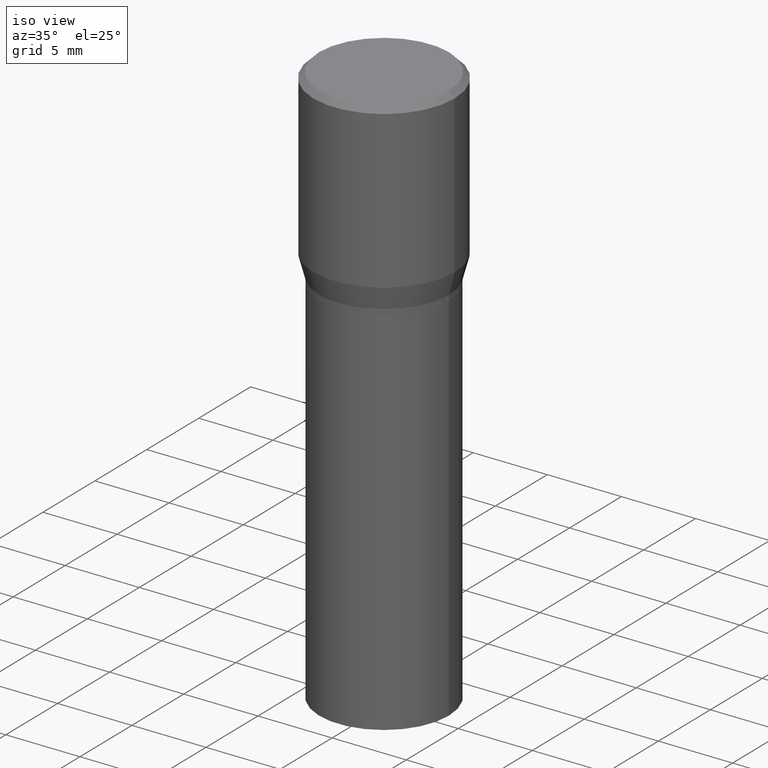
[diagram: clean part render]
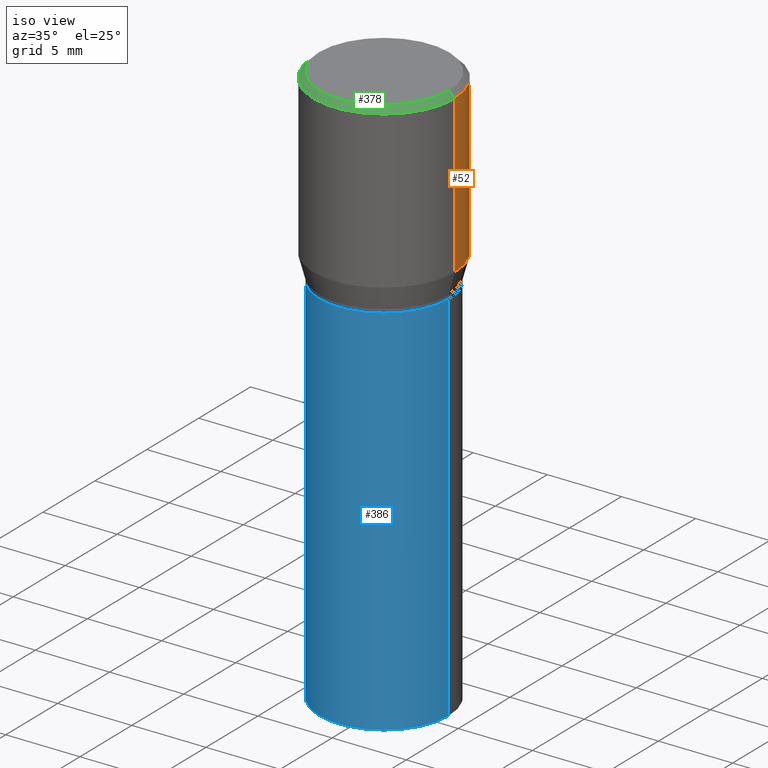
[diagram: same view with three faces highlighted in distinct colors, each labeled with its STEP entity id]
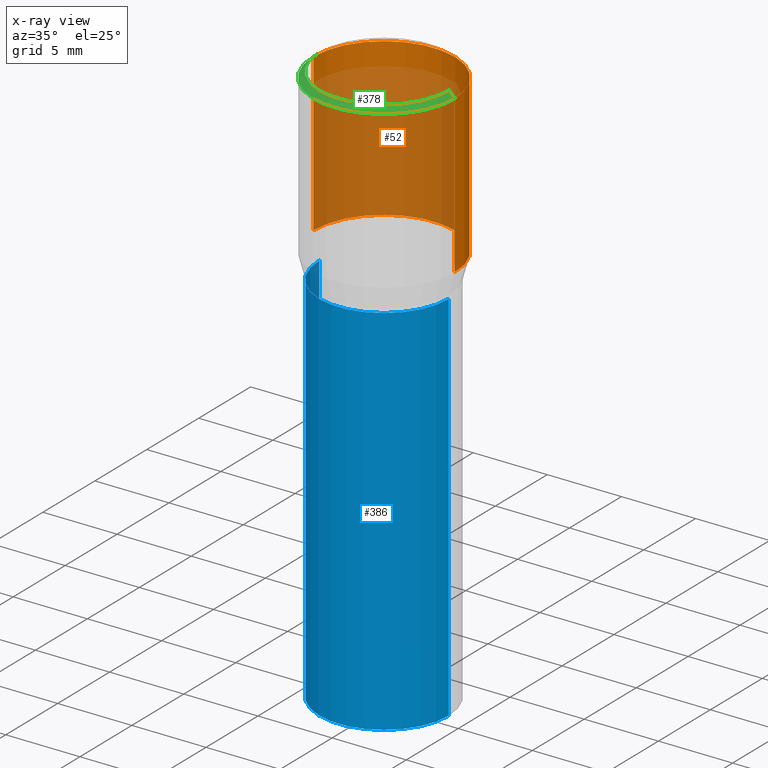
[diagram: x-ray of the same camera — body ghosted, the three highlighted faces saturated]
A machine part, iso view with three faces highlighted in distinct colors.
The next image is the same camera in x-ray (body ghosted, the three faces saturated) — at least one of them is partly hidden behind the body in this view.
Their STEP definitions:

[orange] entity #52 — the highlighted cylindrical surface (partial cylindrical patch) has radius 4.7625 mm, axis along (-0, 0, 1).
#21 = ORIENTED_EDGE ( 'NONE', *, *, #340, .T. ) ;
#28 = EDGE_CURVE ( 'NONE', #284, #323, #264, .T. ) ;
#34 = FACE_OUTER_BOUND ( 'NONE', #399, .T. ) ;
#52 = ADVANCED_FACE ( 'NONE', ( #34 ), #343, .T. ) ;
#62 = DIRECTION ( 'NONE',  ( -2.445468806185136877E-29, 3.491481338843145188E-15, 1.000000000000000000 ) ) ;
#88 = VECTOR ( 'NONE', #380, 39.37007874015748143 ) ;
#106 = DIRECTION ( 'NONE',  ( 1.000000000000000000, -6.982962677686265922E-15, 0.000000000000000000 ) ) ;
#114 = ORIENTED_EDGE ( 'NONE', *, *, #28, .T. ) ;
#118 = DIRECTION ( 'NONE',  ( 1.000000000000000000, -6.982962677686265922E-15, 0.000000000000000000 ) ) ;
#126 = CIRCLE ( 'NONE', #407, 0.1875000000000000278 ) ;
#139 = CARTESIAN_POINT ( 'NONE',  ( 3.668203209277705088E-31, -5.237222008264718399E-17, -0.01499999999999999944 ) ) ;
#152 = CARTESIAN_POINT ( 'NONE',  ( -0.1875000000000000278, -1.752842087791908777E-16, -0.4317800074019257361 ) ) ;
#222 = CARTESIAN_POINT ( 'NONE',  ( 1.055904539235796751E-29, -1.507551838329378850E-15, -0.4317800074019257361 ) ) ;
#246 = ORIENTED_EDGE ( 'NONE', *, *, #265, .F. ) ;
#259 = ORIENTED_EDGE ( 'NONE', *, *, #403, .F. ) ;
#264 = LINE ( 'NONE', #415, #88 ) ;
#265 = EDGE_CURVE ( 'NONE', #293, #323, #355, .T. ) ;
#280 = DIRECTION ( 'NONE',  ( -2.445468806185136597E-29, 3.491481338843145583E-15, 1.000000000000000000 ) ) ;
#284 = VERTEX_POINT ( 'NONE', #152 ) ;
#291 = DIRECTION ( 'NONE',  ( -2.445468806185136597E-29, 3.491481338843145583E-15, 1.000000000000000000 ) ) ;
#293 = VERTEX_POINT ( 'NONE', #295 ) ;
#295 = CARTESIAN_POINT ( 'NONE',  ( 0.1875000000000000278, -1.361677722148822285E-15, -0.01499999999999999944 ) ) ;
#301 = VECTOR ( 'NONE', #62, 39.37007874015748143 ) ;
#302 = DIRECTION ( 'NONE',  ( -2.445468806185136597E-29, 3.491481338843145583E-15, 1.000000000000000000 ) ) ;
#304 = DIRECTION ( 'NONE',  ( 1.000000000000000000, -6.982962677686265922E-15, 4.876176775795935793E-29 ) ) ;
#309 = AXIS2_PLACEMENT_3D ( 'NONE', #139, #280, #106 ) ;
#323 = VERTEX_POINT ( 'NONE', #444 ) ;
#330 = LINE ( 'NONE', #406, #301 ) ;
#340 = EDGE_CURVE ( 'NONE', #350, #284, #126, .T. ) ;
#343 = CYLINDRICAL_SURFACE ( 'NONE', #456, 0.1875000000000000278 ) ;
#350 = VERTEX_POINT ( 'NONE', #361 ) ;
#355 = CIRCLE ( 'NONE', #309, 0.1875000000000000278 ) ;
#361 = CARTESIAN_POINT ( 'NONE',  ( 0.1875000000000000278, -2.816857340395553661E-15, -0.4317800074019257361 ) ) ;
#380 = DIRECTION ( 'NONE',  ( -2.445468806185136877E-29, 3.491481338843145188E-15, 1.000000000000000000 ) ) ;
#390 = CARTESIAN_POINT ( 'NONE',  ( 0.000000000000000000, 0.000000000000000000, 0.000000000000000000 ) ) ;
#399 = EDGE_LOOP ( 'NONE', ( #21, #114, #246, #259 ) ) ;
#403 = EDGE_CURVE ( 'NONE', #350, #293, #330, .T. ) ;
#406 = CARTESIAN_POINT ( 'NONE',  ( 0.1875000000000000278, -1.309305502066175008E-15, 9.142831454617381013E-30 ) ) ;
#407 = AXIS2_PLACEMENT_3D ( 'NONE', #222, #291, #118 ) ;
#415 = CARTESIAN_POINT ( 'NONE',  ( -0.1875000000000000278, 1.332267629550188046E-15, -9.223003294227947991E-30 ) ) ;
#444 = CARTESIAN_POINT ( 'NONE',  ( -0.1875000000000000278, 5.523056003441748841E-16, -0.01499999999999999944 ) ) ;
#456 = AXIS2_PLACEMENT_3D ( 'NONE', #390, #302, #304 ) ;

[blue] entity #386 — the highlighted cylindrical surface (partial cylindrical patch) has radius 4.3663 mm, axis along (-0, 0, 1).
#4 = ORIENTED_EDGE ( 'NONE', *, *, #209, .F. ) ;
#13 = ORIENTED_EDGE ( 'NONE', *, *, #345, .T. ) ;
#17 = CIRCLE ( 'NONE', #175, 0.1718999999999999695 ) ;
#20 = CARTESIAN_POINT ( 'NONE',  ( -0.1718999999999999695, 1.221422962771612003E-15, -8.455649420148183180E-30 ) ) ;
#46 = CARTESIAN_POINT ( 'NONE',  ( 0.1718999999999999695, -1.200371284294269044E-15, 8.382147877593213079E-30 ) ) ;
#77 = CARTESIAN_POINT ( 'NONE',  ( 0.1718999999999999695, -2.946111953715842230E-15, -0.5000000000000001110 ) ) ;
#85 = DIRECTION ( 'NONE',  ( 1.000000000000000000, -6.982962677686268288E-15, 0.000000000000000000 ) ) ;
#86 = CARTESIAN_POINT ( 'NONE',  ( 3.668203209277704895E-29, -5.237222008264718177E-15, -1.500000000000000222 ) ) ;
#90 = VECTOR ( 'NONE', #158, 39.37007874015748143 ) ;
#115 = DIRECTION ( 'NONE',  ( -2.445468806185136597E-29, 3.491481338843145583E-15, 1.000000000000000000 ) ) ;
#116 = DIRECTION ( 'NONE',  ( -2.445468806185136597E-29, 3.491481338843145583E-15, 1.000000000000000000 ) ) ;
#122 = VERTEX_POINT ( 'NONE', #418 ) ;
#140 = ORIENTED_EDGE ( 'NONE', *, *, #283, .T. ) ;
#158 = DIRECTION ( 'NONE',  ( -2.445468806185136877E-29, 3.491481338843145188E-15, 1.000000000000000000 ) ) ;
#162 = VECTOR ( 'NONE', #256, 39.37007874015748143 ) ;
#168 = ORIENTED_EDGE ( 'NONE', *, *, #452, .F. ) ;
#175 = AXIS2_PLACEMENT_3D ( 'NONE', #394, #177, #396 ) ;
#177 = DIRECTION ( 'NONE',  ( -2.445468806185136597E-29, 3.491481338843145583E-15, 1.000000000000000000 ) ) ;
#178 = VERTEX_POINT ( 'NONE', #201 ) ;
#190 = VERTEX_POINT ( 'NONE', #438 ) ;
#201 = CARTESIAN_POINT ( 'NONE',  ( -0.1718999999999999695, -2.270058376071533777E-15, -0.5000000000000001110 ) ) ;
#209 = EDGE_CURVE ( 'NONE', #178, #224, #17, .T. ) ;
#213 = LINE ( 'NONE', #46, #162 ) ;
#224 = VERTEX_POINT ( 'NONE', #77 ) ;
#230 = DIRECTION ( 'NONE',  ( 1.000000000000000000, -6.982962677686266711E-15, 4.876176775795936353E-29 ) ) ;
#249 = CIRCLE ( 'NONE', #412, 0.1718999999999999695 ) ;
#256 = DIRECTION ( 'NONE',  ( -2.445468806185136877E-29, 3.491481338843145188E-15, 1.000000000000000000 ) ) ;
#283 = EDGE_CURVE ( 'NONE', #122, #224, #213, .T. ) ;
#322 = LINE ( 'NONE', #20, #90 ) ;
#324 = CYLINDRICAL_SURFACE ( 'NONE', #336, 0.1718999999999999695 ) ;
#326 = CARTESIAN_POINT ( 'NONE',  ( 0.000000000000000000, 0.000000000000000000, 0.000000000000000000 ) ) ;
#336 = AXIS2_PLACEMENT_3D ( 'NONE', #326, #116, #230 ) ;
#345 = EDGE_CURVE ( 'NONE', #190, #122, #249, .T. ) ;
#348 = EDGE_LOOP ( 'NONE', ( #168, #13, #140, #4 ) ) ;
#379 = FACE_OUTER_BOUND ( 'NONE', #348, .T. ) ;
#386 = ADVANCED_FACE ( 'NONE', ( #379 ), #324, .T. ) ;
#394 = CARTESIAN_POINT ( 'NONE',  ( 1.222734403092568719E-29, -1.745740669421573186E-15, -0.5000000000000001110 ) ) ;
#396 = DIRECTION ( 'NONE',  ( 1.000000000000000000, -6.982962677686266711E-15, 0.000000000000000000 ) ) ;
#412 = AXIS2_PLACEMENT_3D ( 'NONE', #86, #115, #85 ) ;
#418 = CARTESIAN_POINT ( 'NONE',  ( 0.1718999999999999695, -6.437593292558987418E-15, -1.500000000000000222 ) ) ;
#438 = CARTESIAN_POINT ( 'NONE',  ( -0.1718999999999999695, -2.270058376071533777E-15, -1.500000000000000222 ) ) ;
#452 = EDGE_CURVE ( 'NONE', #190, #178, #322, .T. ) ;

[green] entity #378 — the highlighted conical surface has half-angle 45 deg.
#3 = DIRECTION ( 'NONE',  ( -2.445468806185136597E-29, 3.491481338843145583E-15, 1.000000000000000000 ) ) ;
#8 = AXIS2_PLACEMENT_3D ( 'NONE', #448, #261, #219 ) ;
#33 = CARTESIAN_POINT ( 'NONE',  ( 6.448077620501702025E-46, -9.206145924434830208E-32, -2.636744989015224123E-17 ) ) ;
#38 = EDGE_CURVE ( 'NONE', #260, #233, #217, .T. ) ;
#39 = AXIS2_PLACEMENT_3D ( 'NONE', #33, #3, #269 ) ;
#50 = CIRCLE ( 'NONE', #208, 0.1875000000000000278 ) ;
#55 = EDGE_CURVE ( 'NONE', #233, #293, #337, .T. ) ;
#79 = CARTESIAN_POINT ( 'NONE',  ( -0.1725000000000000144, 1.230747171942204192E-15, -2.636744989016075847E-17 ) ) ;
#105 = CARTESIAN_POINT ( 'NONE',  ( 0.1725000000000000144, -1.261075749640199308E-15, -2.636744989014362231E-17 ) ) ;
#109 = LINE ( 'NONE', #250, #182 ) ;
#119 = DIRECTION ( 'NONE',  ( 0.7071067811865483499, -7.319954787623257623E-15, -0.7071067811865466846 ) ) ;
#144 = CARTESIAN_POINT ( 'NONE',  ( 3.668203209277705088E-31, -5.237222008264718399E-17, -0.01499999999999999944 ) ) ;
#182 = VECTOR ( 'NONE', #341, 39.37007874015748143 ) ;
#189 = DIRECTION ( 'NONE',  ( 1.000000000000000000, -6.982962677686265922E-15, 0.000000000000000000 ) ) ;
#208 = AXIS2_PLACEMENT_3D ( 'NONE', #144, #367, #189 ) ;
#217 = CIRCLE ( 'NONE', #39, 0.1725000000000000144 ) ;
#219 = DIRECTION ( 'NONE',  ( -1.000000000000000000, 6.982962677686265922E-15, 0.000000000000000000 ) ) ;
#233 = VERTEX_POINT ( 'NONE', #105 ) ;
#250 = CARTESIAN_POINT ( 'NONE',  ( -0.1875000000000000278, 1.256933281983527732E-15, -0.01499999999999999944 ) ) ;
#260 = VERTEX_POINT ( 'NONE', #79 ) ;
#261 = DIRECTION ( 'NONE',  ( 2.445468806185136597E-29, -3.491481338843145583E-15, -1.000000000000000000 ) ) ;
#267 = ORIENTED_EDGE ( 'NONE', *, *, #435, .T. ) ;
#269 = DIRECTION ( 'NONE',  ( 1.000000000000000000, -6.982962677686266711E-15, 4.876912640186324808E-29 ) ) ;
#271 = CONICAL_SURFACE ( 'NONE', #8, 0.1875000000000000278, 0.7853981633974495002 ) ;
#293 = VERTEX_POINT ( 'NONE', #295 ) ;
#295 = CARTESIAN_POINT ( 'NONE',  ( 0.1875000000000000278, -1.361677722148822285E-15, -0.01499999999999999944 ) ) ;
#323 = VERTEX_POINT ( 'NONE', #444 ) ;
#337 = LINE ( 'NONE', #423, #454 ) ;
#341 = DIRECTION ( 'NONE',  ( -0.7071067811865483499, 2.468850131082265738E-15, -0.7071067811865466846 ) ) ;
#342 = ORIENTED_EDGE ( 'NONE', *, *, #38, .F. ) ;
#344 = ORIENTED_EDGE ( 'NONE', *, *, #363, .T. ) ;
#363 = EDGE_CURVE ( 'NONE', #323, #293, #50, .T. ) ;
#367 = DIRECTION ( 'NONE',  ( -2.445468806185136597E-29, 3.491481338843145583E-15, 1.000000000000000000 ) ) ;
#378 = ADVANCED_FACE ( 'NONE', ( #408 ), #271, .T. ) ;
#408 = FACE_OUTER_BOUND ( 'NONE', #451, .T. ) ;
#423 = CARTESIAN_POINT ( 'NONE',  ( 0.1875000000000000278, -1.338715594664809642E-15, -0.01499999999999999944 ) ) ;
#430 = ORIENTED_EDGE ( 'NONE', *, *, #55, .F. ) ;
#435 = EDGE_CURVE ( 'NONE', #260, #323, #109, .T. ) ;
#444 = CARTESIAN_POINT ( 'NONE',  ( -0.1875000000000000278, 5.523056003441748841E-16, -0.01499999999999999944 ) ) ;
#448 = CARTESIAN_POINT ( 'NONE',  ( 3.668203209277705088E-31, -5.237222008264718399E-17, -0.01499999999999999944 ) ) ;
#451 = EDGE_LOOP ( 'NONE', ( #430, #342, #267, #344 ) ) ;
#454 = VECTOR ( 'NONE', #119, 39.37007874015748143 ) ;